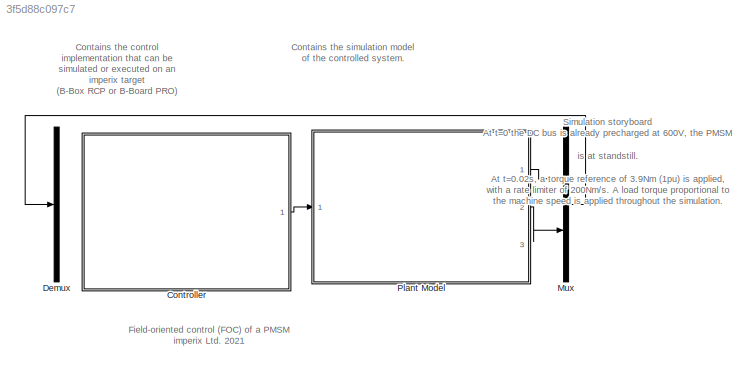
MODEL slx_3f5d88c097c7
KIND model
CONFIG AbsTol = auto
CONFIG EnableMultiTasking = on
CONFIG FixedStep = auto
CONFIG InitFcn = % --- DO NOT REMOVE THIS CODE (ver.3.8.0) ---\n    % check SDK version\n    required_lib_version = 3701.1;\n    required_lib_ver_str = '3.8.0';\n    lib_path = [getenv('IX_SIMULINK_ACG_BB_3') '\simulink\blocks\BoomBox.slx'];\n    if exist(lib_path, 'file')\n        lib_version = str2double(Simulink.MDLInfo(lib_path).ModelVersion); % fullpath to avoid getting shadowing files\n        if lib_version < requ...<+1801ch>
CONFIG MaxStep = auto
CONFIG MinStep = auto
CONFIG PostLoadFcn = % --- DO NOT REMOVE THIS CODE (ver.3.8.0) ---\n    % change the execution mode of simulink depending on the radio button:\n    if(strcmp('Automated Code Generation',get_param(find_system(bdroot,'BlockDialogParams','kb0101'),'SLMODE')))\n        assignin('base', 'SIMULINK_MODE', 1);\n    else\n        assignin('base', 'SIMULINK_MODE', 0);\n    end\n\n    Model_PostLoadFcn(bdroot);\n% --- PLACE YOUR CODE BEL...<+17ch>
CONFIG PreLoadFcn = % --- DO NOT REMOVE THIS CODE (ver.3.8.0) ---\n    % create Simulink variants\n    if not(exist('variant_simulation', 'var'))\n        variant_simulation = Simulink.Variant('SIMULINK_MODE==0');\n    end\n    if not(exist('variant_generation', 'var'))\n        variant_generation = Simulink.Variant('SIMULINK_MODE==1');\n    end\n\n    % check SDK version\n    required_lib_version = 3701.1;\n    required_lib_ve...<+2543ch>
CONFIG RelTol = 1e-3
CONFIG SampleTimeConstraint = Unconstrained
CONFIG SolverName = FixedStepAuto
CONFIG StartTime = 0.0
CONFIG StopTime = 4
WORKSPACE source: mxarray member
WORKSPACE CTRLPERIOD = 5e-05
WORKSPACE TSAMPLE = 2e-06
WORKSPACE global_CLK_number = 0
WORKSPACE global_INT_number = 1
WORKSPACE global_SVM_instance_id = 0
WORKSPACE global_can_baud_rate = '1000000'
WORKSPACE global_comp_time = 0.2
WORKSPACE global_cycle_delay = 0
WORKSPACE global_ip_addresses: object (value not decoded)
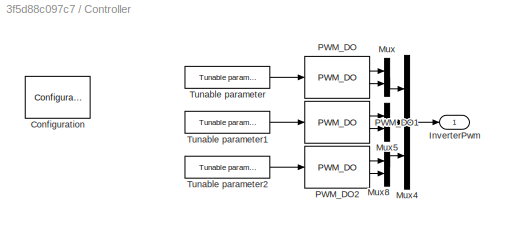
BLOCK [SubSystem] Controller
  Ports = [0, 1]
  RequestExecContextInheritance = off
BLOCK [Reference] Controller/Configuration  REF=BoomBox/Configuration
  Description = Please leave the Priority (below parameter) to maximum negative to ensure that this block is always executed first.
  Ports = [0, 2]
  Priority = -99999
  SourceBlock = BoomBox/Configuration
  SourceProductName = imperix blockset
  SourceType = Configuration
BLOCK [Outport] Controller/InverterPwm
BLOCK [Mux] Controller/Mux
  DisplayOption = bar
  Inputs = 2
  Ports = [2, 1]
BLOCK [Mux] Controller/Mux4
  DisplayOption = bar
  Inputs = 3
  Ports = [3, 1]
BLOCK [Mux] Controller/Mux5
  DisplayOption = bar
  Inputs = 2
  Ports = [2, 1]
BLOCK [Mux] Controller/Mux8
  DisplayOption = bar
  Inputs = 2
  Ports = [2, 1]
BLOCK [Reference] Controller/PWM_DO  REF=BoomBox/PWM_DO
  Ports = [1, 2]
  SourceBlock = BoomBox/PWM_DO
  SourceProductName = imperix blockset
  SourceType = Direct Output PWM
BLOCK [Reference] Controller/PWM_DO1  REF=BoomBox/PWM_DO
  Ports = [1, 2]
  SourceBlock = BoomBox/PWM_DO
  SourceProductName = imperix blockset
  SourceType = Direct Output PWM
BLOCK [Reference] Controller/PWM_DO2  REF=BoomBox/PWM_DO
  Ports = [1, 2]
  SourceBlock = BoomBox/PWM_DO
  SourceProductName = imperix blockset
  SourceType = Direct Output PWM
BLOCK [Reference] Controller/Tunable parameter  REF=BoomBox/Tunable parameter
  Ports = [0, 1]
  SourceBlock = BoomBox/Tunable parameter
  SourceProductName = imperix blockset
  SourceType = Tunable parameter
BLOCK [Reference] Controller/Tunable parameter1  REF=BoomBox/Tunable parameter
  Ports = [0, 1]
  SourceBlock = BoomBox/Tunable parameter
  SourceProductName = imperix blockset
  SourceType = Tunable parameter
BLOCK [Reference] Controller/Tunable parameter2  REF=BoomBox/Tunable parameter
  Ports = [0, 1]
  SourceBlock = BoomBox/Tunable parameter
  SourceProductName = imperix blockset
  SourceType = Tunable parameter
BLOCK [Demux] Demux
  Outputs = [3 1]
  Ports = [1, 2]
BLOCK [Mux] Mux
  DisplayOption = bar
  Inputs = [3 1]
  Ports = [2, 1]
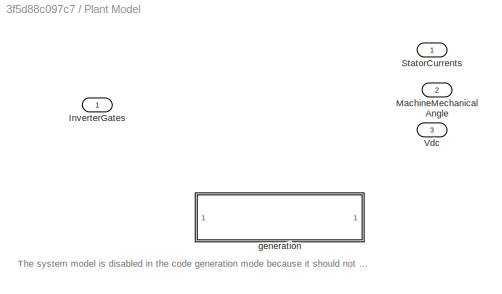
BLOCK [SubSystem] Plant Model
  Ports = [1, 3]
  RequestExecContextInheritance = off
  Variant = on
BLOCK [Inport] Plant Model/InverterGates
BLOCK [Outport] Plant Model/MachineMechanicalAngle
  Port = 2
BLOCK [Outport] Plant Model/StatorCurrents
BLOCK [Outport] Plant Model/Vdc
  Port = 3
BLOCK [SubSystem] Plant Model/generation
  Permissions = NoReadOrWrite
  Ports = []
  RequestExecContextInheritance = off
  TreatAsAtomicUnit = on
  VariantControl = variant_generation
ANNOTATION (root): Contains the control implementation that can be simulated or executed on an imperix target (B-Box RCP or B-Board PRO)
ANNOTATION (root): Contains the simulation model of the controlled system.
ANNOTATION (root): Field-oriented control (FOC) of a PMSM imperix Ltd. 2021
ANNOTATION (root): Simulation storyboard At t=0 the DC bus is already precharged at 600V, the PMSM is at standstill. At t=0.02s, a torque reference of 3.9Nm (1pu) is applied, with a rate limiter of 200Nm/s. A load torque proportional to the machine speed is applied throughout the simulation. At t=0.75s, reference torque is reduced to 0.75pu.
ANNOTATION Plant Model: The system model is disabled in the code generation mode because it should not generate any code to be downloaded in the B-Box.
LINE Controller/Mux4:1 -> Controller/InverterPwm:1
LINE Controller/Mux5:1 -> Controller/Mux4:2
LINE Controller/Mux8:1 -> Controller/Mux4:3
LINE Controller/Mux:1 -> Controller/Mux4:1
LINE Controller/PWM_DO1:1 -> Controller/Mux5:1
LINE Controller/PWM_DO1:2 -> Controller/Mux5:2
LINE Controller/PWM_DO2:1 -> Controller/Mux8:1
LINE Controller/PWM_DO2:2 -> Controller/Mux8:2
LINE Controller/PWM_DO:1 -> Controller/Mux:1
LINE Controller/PWM_DO:2 -> Controller/Mux:2
LINE Controller/Tunable parameter1:1 -> Controller/PWM_DO1:1
LINE Controller/Tunable parameter2:1 -> Controller/PWM_DO2:1
LINE Controller/Tunable parameter:1 -> Controller/PWM_DO:1
LINE Controller:1 -> Plant Model:1
LINE Mux:1 -> Demux:1
LINE Plant Model:1 -> Mux:1
LINE Plant Model:2 -> Mux:2
